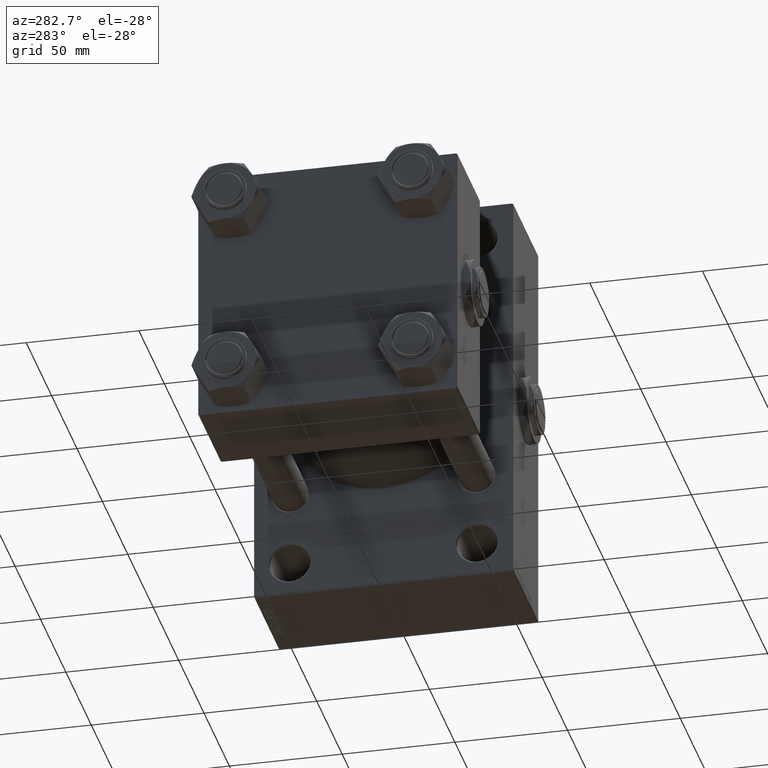
[diagram: clean part render]
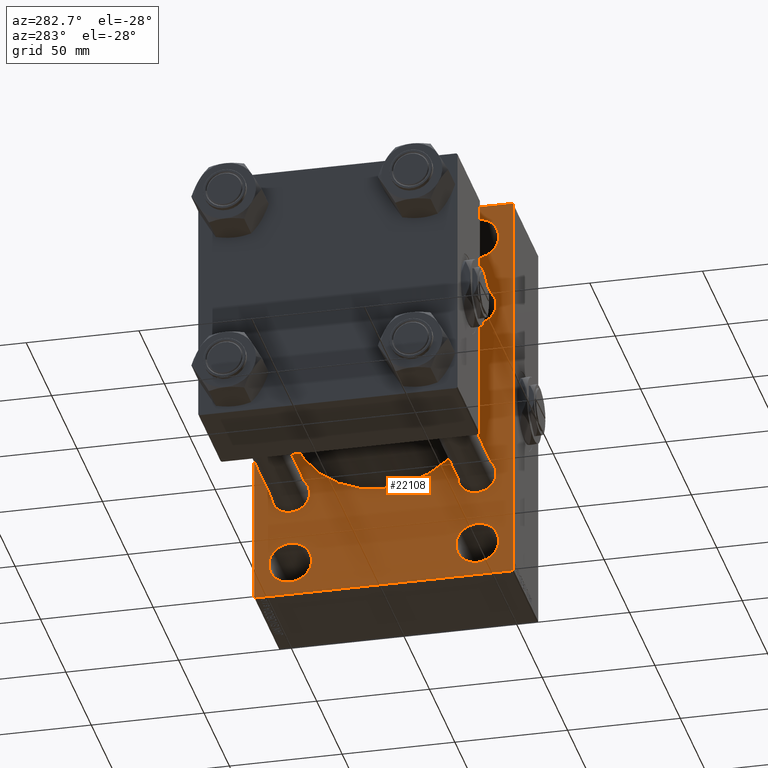
[diagram: same view with one face highlighted and labeled with its STEP entity id]
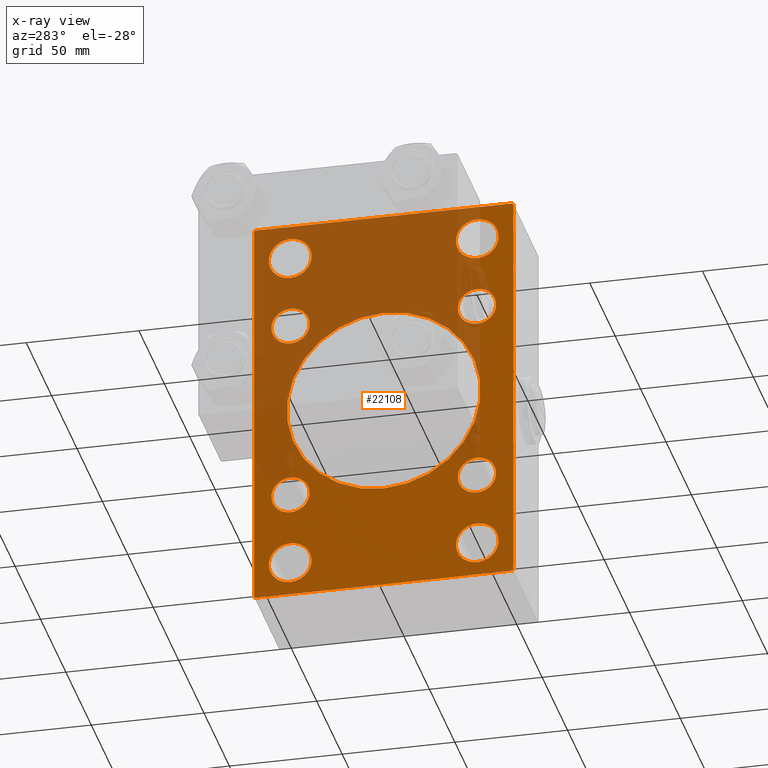
[diagram: x-ray of the same camera — body ghosted, the highlighted face saturated]
A machine part, auxiliary view. The second image highlights one B-rep face of the part: STEP entity #22108.
The next image is the same camera in x-ray: the body ghosted, the highlighted face saturated — about 47% of this face is hidden behind the body in this view.
In plain terms, the highlighted planar face has unit normal (-1, 0, 0).
Its self-contained STEP definition (entity closure, byte-faithful):
#246 = CARTESIAN_POINT ( 'NONE',  ( 110.0000000000000000, 73.49999999999916156, -73.50000000000122213 ) ) ;
#305 = CIRCLE ( 'NONE', #46122, 8.500000000000007105 ) ;
#605 = CIRCLE ( 'NONE', #28726, 43.00000000000000000 ) ;
#878 = CIRCLE ( 'NONE', #30614, 8.500000000000007105 ) ;
#1151 = CARTESIAN_POINT ( 'NONE',  ( 110.0000000000000000, -57.50000000000002132, 89.49999999999994316 ) ) ;
#1363 = DIRECTION ( 'NONE',  ( 0.000000000000000000, 0.000000000000000000, 1.000000000000000000 ) ) ;
#1447 = ORIENTED_EDGE ( 'NONE', *, *, #5412, .T. ) ;
#1449 = CARTESIAN_POINT ( 'NONE',  ( 110.0000000000000000, 41.34999999999999432, 41.35000000000000142 ) ) ;
#2037 = DIRECTION ( 'NONE',  ( 0.000000000000000000, -1.000000000000000000, -1.206764157201257291E-16 ) ) ;
#2074 = DIRECTION ( 'NONE',  ( 1.000000000000000000, -0.000000000000000000, 0.000000000000000000 ) ) ;
#2473 = AXIS2_PLACEMENT_3D ( 'NONE', #6873, #29532, #37078 ) ;
#2915 = ORIENTED_EDGE ( 'NONE', *, *, #7496, .T. ) ;
#3281 = CARTESIAN_POINT ( 'NONE',  ( 110.0000000000000000, -73.49999999999918998, -73.50000000000123634 ) ) ;
#3391 = EDGE_CURVE ( 'NONE', #38783, #4197, #41523, .T. ) ;
#4034 = LINE ( 'NONE', #3281, #37221 ) ;
#4197 = VERTEX_POINT ( 'NONE', #31053 ) ;
#4209 = EDGE_CURVE ( 'NONE', #30646, #10690, #39911, .T. ) ;
#4331 = FACE_BOUND ( 'NONE', #17637, .T. ) ;
#4976 = ORIENTED_EDGE ( 'NONE', *, *, #6711, .T. ) ;
#5055 = AXIS2_PLACEMENT_3D ( 'NONE', #30129, #49740, #22321 ) ;
#5187 = CARTESIAN_POINT ( 'NONE',  ( 110.0000000000000000, -41.49999999999999289, 74.50000000000001421 ) ) ;
#5412 = EDGE_CURVE ( 'NONE', #28501, #28387, #5430, .T. ) ;
#5430 = CIRCLE ( 'NONE', #37573, 9.500000000000035527 ) ;
#5635 = ORIENTED_EDGE ( 'NONE', *, *, #35352, .F. ) ;
#5888 = CARTESIAN_POINT ( 'NONE',  ( 110.0000000000000000, -41.34999999999998721, 49.85000000000002274 ) ) ;
#5890 = DIRECTION ( 'NONE',  ( 0.000000000000000000, 0.000000000000000000, 1.000000000000000000 ) ) ;
#5931 = AXIS2_PLACEMENT_3D ( 'NONE', #21607, #29668, #30163 ) ;
#6103 = AXIS2_PLACEMENT_3D ( 'NONE', #24038, #32095, #5890 ) ;
#6415 = DIRECTION ( 'NONE',  ( 0.000000000000000000, 3.854941057726238467E-17, -1.000000000000000000 ) ) ;
#6624 = VERTEX_POINT ( 'NONE', #33776 ) ;
#6711 = EDGE_CURVE ( 'NONE', #10690, #30646, #305, .T. ) ;
#6718 = CARTESIAN_POINT ( 'NONE',  ( 110.0000000000000000, 41.50000000000000711, -64.99999999999995737 ) ) ;
#6873 = CARTESIAN_POINT ( 'NONE',  ( 110.0000000000000000, 41.50000000000000711, -74.50000000000000000 ) ) ;
#6926 = CIRCLE ( 'NONE', #6103, 8.500000000000007105 ) ;
#7496 = EDGE_CURVE ( 'NONE', #28387, #28501, #34093, .T. ) ;
#7856 = FACE_BOUND ( 'NONE', #27913, .T. ) ;
#7920 = CARTESIAN_POINT ( 'NONE',  ( 110.0000000000000000, 41.34999999999999432, -32.84999999999999432 ) ) ;
#8038 = DIRECTION ( 'NONE',  ( 1.000000000000000000, 0.000000000000000000, 0.000000000000000000 ) ) ;
#8146 = DIRECTION ( 'NONE',  ( 0.000000000000000000, 0.000000000000000000, 1.000000000000000000 ) ) ;
#8202 = CARTESIAN_POINT ( 'NONE',  ( 110.0000000000000000, -2.602085213965210642E-15, 43.00000000000000000 ) ) ;
#8498 = CARTESIAN_POINT ( 'NONE',  ( 110.0000000000000000, 57.49999999999997868, -89.49999999999990052 ) ) ;
#8513 = EDGE_CURVE ( 'NONE', #6624, #28816, #45210, .T. ) ;
#8535 = DIRECTION ( 'NONE',  ( 0.000000000000000000, 0.000000000000000000, -1.000000000000000000 ) ) ;
#8654 = CIRCLE ( 'NONE', #21502, 8.500000000000007105 ) ;
#8839 = CIRCLE ( 'NONE', #21695, 43.00000000000000000 ) ;
#9211 = VECTOR ( 'NONE', #2037, 1000.000000000000000 ) ;
#9525 = VECTOR ( 'NONE', #36710, 1000.000000000000114 ) ;
#9962 = CARTESIAN_POINT ( 'NONE',  ( 110.0000000000000000, 57.49999999999997868, -90.00000000000000000 ) ) ;
#10220 = VERTEX_POINT ( 'NONE', #37184 ) ;
#10477 = CIRCLE ( 'NONE', #2473, 9.500000000000035527 ) ;
#10690 = VERTEX_POINT ( 'NONE', #18979 ) ;
#10875 = EDGE_CURVE ( 'NONE', #25989, #14028, #8654, .T. ) ;
#10942 = CARTESIAN_POINT ( 'NONE',  ( 110.0000000000000000, -56.99999999999996447, -90.00000000000001421 ) ) ;
#11517 = CARTESIAN_POINT ( 'NONE',  ( 110.0000000000000000, -41.34999999999998721, -49.85000000000002274 ) ) ;
#11896 = CARTESIAN_POINT ( 'NONE',  ( 110.0000000000000000, -41.34999999999998721, -41.35000000000000853 ) ) ;
#12230 = DIRECTION ( 'NONE',  ( 0.000000000000000000, 0.000000000000000000, 1.000000000000000000 ) ) ;
#12588 = CIRCLE ( 'NONE', #33514, 9.500000000000035527 ) ;
#13088 = EDGE_CURVE ( 'NONE', #42217, #31296, #46990, .T. ) ;
#13646 = DIRECTION ( 'NONE',  ( 1.000000000000000000, -0.000000000000000000, 0.000000000000000000 ) ) ;
#13731 = EDGE_LOOP ( 'NONE', ( #4976, #42952 ) ) ;
#13910 = DIRECTION ( 'NONE',  ( 0.000000000000000000, 0.000000000000000000, 1.000000000000000000 ) ) ;
#14028 = VERTEX_POINT ( 'NONE', #5888 ) ;
#14714 = DIRECTION ( 'NONE',  ( 1.000000000000000000, 0.000000000000000000, 0.000000000000000000 ) ) ;
#14873 = DIRECTION ( 'NONE',  ( 1.000000000000000000, -0.000000000000000000, 0.000000000000000000 ) ) ;
#15015 = AXIS2_PLACEMENT_3D ( 'NONE', #1449, #20825, #16791 ) ;
#15362 = CARTESIAN_POINT ( 'NONE',  ( 110.0000000000000000, -41.34999999999998721, -41.35000000000000853 ) ) ;
#15586 = DIRECTION ( 'NONE',  ( -0.000000000000000000, -0.7071067811865574537, -0.7071067811865376918 ) ) ;
#15635 = FACE_OUTER_BOUND ( 'NONE', #41082, .T. ) ;
#15638 = VECTOR ( 'NONE', #45461, 1000.000000000000000 ) ;
#15721 = ORIENTED_EDGE ( 'NONE', *, *, #32378, .T. ) ;
#15780 = AXIS2_PLACEMENT_3D ( 'NONE', #18210, #37594, #45143 ) ;
#16256 = VERTEX_POINT ( 'NONE', #26898 ) ;
#16463 = CARTESIAN_POINT ( 'NONE',  ( 110.0000000000000000, 41.50000000000000711, -84.00000000000002842 ) ) ;
#16564 = VERTEX_POINT ( 'NONE', #6718 ) ;
#16673 = DIRECTION ( 'NONE',  ( 1.000000000000000000, -0.000000000000000000, 0.000000000000000000 ) ) ;
#16713 = CARTESIAN_POINT ( 'NONE',  ( 110.0000000000000000, 41.34999999999999432, 32.84999999999999432 ) ) ;
#16791 = DIRECTION ( 'NONE',  ( 0.000000000000000000, 0.000000000000000000, 1.000000000000000000 ) ) ;
#17126 = CARTESIAN_POINT ( 'NONE',  ( 110.0000000000000000, -41.49999999999999289, 64.99999999999997158 ) ) ;
#17158 = DIRECTION ( 'NONE',  ( 1.000000000000000000, -0.000000000000000000, 0.000000000000000000 ) ) ;
#17637 = EDGE_LOOP ( 'NONE', ( #34516, #27045 ) ) ;
#17668 = CARTESIAN_POINT ( 'NONE',  ( 110.0000000000000000, 41.50000000000000711, -74.50000000000000000 ) ) ;
#17959 = VERTEX_POINT ( 'NONE', #44938 ) ;
#17969 = LINE ( 'NONE', #33590, #28137 ) ;
#18006 = DIRECTION ( 'NONE',  ( 1.000000000000000000, -0.000000000000000000, 0.000000000000000000 ) ) ;
#18210 = CARTESIAN_POINT ( 'NONE',  ( 110.0000000000000000, 41.50000000000000711, 74.50000000000001421 ) ) ;
#18262 = DIRECTION ( 'NONE',  ( 0.000000000000000000, 0.000000000000000000, 1.000000000000000000 ) ) ;
#18271 = EDGE_CURVE ( 'NONE', #28816, #17959, #4034, .T. ) ;
#18979 = CARTESIAN_POINT ( 'NONE',  ( 110.0000000000000000, -41.34999999999998721, -32.85000000000000142 ) ) ;
#19084 = LINE ( 'NONE', #37729, #32060 ) ;
#19283 = EDGE_LOOP ( 'NONE', ( #36234, #23405 ) ) ;
#19491 = VERTEX_POINT ( 'NONE', #39734 ) ;
#19681 = DIRECTION ( 'NONE',  ( -1.000000000000000000, 0.000000000000000000, -0.000000000000000000 ) ) ;
#19776 = ORIENTED_EDGE ( 'NONE', *, *, #8513, .T. ) ;
#19824 = AXIS2_PLACEMENT_3D ( 'NONE', #11896, #16673, #8146 ) ;
#20087 = ORIENTED_EDGE ( 'NONE', *, *, #44901, .T. ) ;
#20181 = VERTEX_POINT ( 'NONE', #7920 ) ;
#20438 = AXIS2_PLACEMENT_3D ( 'NONE', #5187, #23556, #31619 ) ;
#20672 = EDGE_CURVE ( 'NONE', #14028, #25989, #47732, .T. ) ;
#20825 = DIRECTION ( 'NONE',  ( 1.000000000000000000, -0.000000000000000000, 0.000000000000000000 ) ) ;
#20975 = EDGE_CURVE ( 'NONE', #27553, #31520, #8839, .T. ) ;
#21060 = VERTEX_POINT ( 'NONE', #26810 ) ;
#21502 = AXIS2_PLACEMENT_3D ( 'NONE', #44117, #2074, #32796 ) ;
#21607 = CARTESIAN_POINT ( 'NONE',  ( 110.0000000000000000, -41.34999999999998721, 41.35000000000000853 ) ) ;
#21695 = AXIS2_PLACEMENT_3D ( 'NONE', #30835, #14714, #46441 ) ;
#22108 = ADVANCED_FACE ( 'NONE', ( #34791, #46861, #7856, #46618, #35043, #4331, #27743, #23216, #38570, #15635 ), #31014, .T. ) ;
#22321 = DIRECTION ( 'NONE',  ( 0.000000000000000000, 0.000000000000000000, 1.000000000000000000 ) ) ;
#22444 = DIRECTION ( 'NONE',  ( 0.000000000000000000, 0.000000000000000000, 1.000000000000000000 ) ) ;
#22460 = CARTESIAN_POINT ( 'NONE',  ( 110.0000000000000000, 41.34999999999999432, -41.35000000000000142 ) ) ;
#23081 = CARTESIAN_POINT ( 'NONE',  ( 110.0000000000000000, 41.50000000000000711, 74.50000000000001421 ) ) ;
#23162 = AXIS2_PLACEMENT_3D ( 'NONE', #30776, #18006, #18262 ) ;
#23216 = FACE_BOUND ( 'NONE', #13731, .T. ) ;
#23405 = ORIENTED_EDGE ( 'NONE', *, *, #13088, .T. ) ;
#23556 = DIRECTION ( 'NONE',  ( 1.000000000000000000, -0.000000000000000000, 0.000000000000000000 ) ) ;
#24038 = CARTESIAN_POINT ( 'NONE',  ( 110.0000000000000000, 41.34999999999999432, -41.35000000000000142 ) ) ;
#24652 = CARTESIAN_POINT ( 'NONE',  ( 110.0000000000000000, 73.49999999999995737, 73.49999999999995737 ) ) ;
#25248 = CARTESIAN_POINT ( 'NONE',  ( 110.0000000000000000, -41.49999999999999289, 84.00000000000004263 ) ) ;
#25748 = EDGE_CURVE ( 'NONE', #19491, #16256, #36775, .T. ) ;
#25989 = VERTEX_POINT ( 'NONE', #28438 ) ;
#26601 = VERTEX_POINT ( 'NONE', #46895 ) ;
#26651 = DIRECTION ( 'NONE',  ( 0.000000000000000000, 0.000000000000000000, -1.000000000000000000 ) ) ;
#26810 = CARTESIAN_POINT ( 'NONE',  ( 110.0000000000000000, 41.34999999999999432, -49.85000000000001563 ) ) ;
#26832 = CARTESIAN_POINT ( 'NONE',  ( 110.0000000000000000, -41.49999999999999289, -84.00000000000001421 ) ) ;
#26898 = CARTESIAN_POINT ( 'NONE',  ( 110.0000000000000000, -56.99999999999998579, 89.99999999999997158 ) ) ;
#27045 = ORIENTED_EDGE ( 'NONE', *, *, #39827, .T. ) ;
#27553 = VERTEX_POINT ( 'NONE', #8202 ) ;
#27743 = FACE_BOUND ( 'NONE', #32105, .T. ) ;
#27913 = EDGE_LOOP ( 'NONE', ( #45019, #45979 ) ) ;
#27995 = EDGE_LOOP ( 'NONE', ( #41808, #20087 ) ) ;
#28137 = VECTOR ( 'NONE', #6415, 1000.000000000000000 ) ;
#28387 = VERTEX_POINT ( 'NONE', #25248 ) ;
#28438 = CARTESIAN_POINT ( 'NONE',  ( 110.0000000000000000, -41.34999999999998721, 32.85000000000000142 ) ) ;
#28501 = VERTEX_POINT ( 'NONE', #17126 ) ;
#28726 = AXIS2_PLACEMENT_3D ( 'NONE', #43009, #8038, #8535 ) ;
#28816 = VERTEX_POINT ( 'NONE', #10942 ) ;
#28877 = EDGE_CURVE ( 'NONE', #20181, #21060, #6926, .T. ) ;
#28998 = VERTEX_POINT ( 'NONE', #16463 ) ;
#29164 = DIRECTION ( 'NONE',  ( -0.000000000000000000, 0.7071067811865524577, 0.7071067811865426878 ) ) ;
#29424 = EDGE_CURVE ( 'NONE', #29891, #6624, #46066, .T. ) ;
#29532 = DIRECTION ( 'NONE',  ( 1.000000000000000000, -0.000000000000000000, 0.000000000000000000 ) ) ;
#29668 = DIRECTION ( 'NONE',  ( 1.000000000000000000, -0.000000000000000000, 0.000000000000000000 ) ) ;
#29807 = DIRECTION ( 'NONE',  ( 1.000000000000000000, -0.000000000000000000, 0.000000000000000000 ) ) ;
#29891 = VERTEX_POINT ( 'NONE', #8498 ) ;
#30049 = CARTESIAN_POINT ( 'NONE',  ( 110.0000000000000000, -41.49999999999999289, 74.50000000000001421 ) ) ;
#30129 = CARTESIAN_POINT ( 'NONE',  ( 110.0000000000000000, -41.49999999999999289, -74.49999999999998579 ) ) ;
#30163 = DIRECTION ( 'NONE',  ( 0.000000000000000000, 0.000000000000000000, 1.000000000000000000 ) ) ;
#30220 = DIRECTION ( 'NONE',  ( 0.000000000000000000, -0.7071067811865574537, 0.7071067811865376918 ) ) ;
#30262 = DIRECTION ( 'NONE',  ( 0.000000000000000000, 0.000000000000000000, 1.000000000000000000 ) ) ;
#30614 = AXIS2_PLACEMENT_3D ( 'NONE', #48146, #13646, #1363 ) ;
#30646 = VERTEX_POINT ( 'NONE', #11517 ) ;
#30776 = CARTESIAN_POINT ( 'NONE',  ( 110.0000000000000000, -41.49999999999999289, -74.49999999999998579 ) ) ;
#30799 = EDGE_CURVE ( 'NONE', #10220, #46219, #34303, .T. ) ;
#30835 = CARTESIAN_POINT ( 'NONE',  ( 110.0000000000000000, -2.602085213965210642E-15, 0.000000000000000000 ) ) ;
#30850 = EDGE_CURVE ( 'NONE', #16564, #28998, #12588, .T. ) ;
#31014 = PLANE ( 'NONE',  #48564 ) ;
#31053 = CARTESIAN_POINT ( 'NONE',  ( 110.0000000000000000, 41.50000000000000711, 64.99999999999997158 ) ) ;
#31269 = DIRECTION ( 'NONE',  ( -0.000000000000000000, 0.000000000000000000, 1.000000000000000000 ) ) ;
#31296 = VERTEX_POINT ( 'NONE', #47809 ) ;
#31439 = CARTESIAN_POINT ( 'NONE',  ( 110.0000000000000000, 2.663896022368408223E-15, -43.00000000000000000 ) ) ;
#31509 = ORIENTED_EDGE ( 'NONE', *, *, #34500, .T. ) ;
#31520 = VERTEX_POINT ( 'NONE', #31439 ) ;
#31619 = DIRECTION ( 'NONE',  ( 0.000000000000000000, 0.000000000000000000, 1.000000000000000000 ) ) ;
#31876 = VECTOR ( 'NONE', #15586, 999.9999999999998863 ) ;
#32060 = VECTOR ( 'NONE', #26651, 1000.000000000000000 ) ;
#32095 = DIRECTION ( 'NONE',  ( 1.000000000000000000, -0.000000000000000000, 0.000000000000000000 ) ) ;
#32105 = EDGE_LOOP ( 'NONE', ( #46258, #35804 ) ) ;
#32378 = EDGE_CURVE ( 'NONE', #31520, #27553, #605, .T. ) ;
#32782 = DIRECTION ( 'NONE',  ( 0.000000000000000000, 0.000000000000000000, 1.000000000000000000 ) ) ;
#32796 = DIRECTION ( 'NONE',  ( 0.000000000000000000, 0.000000000000000000, 1.000000000000000000 ) ) ;
#32974 = CIRCLE ( 'NONE', #39412, 8.500000000000007105 ) ;
#33279 = ORIENTED_EDGE ( 'NONE', *, *, #18271, .T. ) ;
#33513 = EDGE_LOOP ( 'NONE', ( #43672, #15721 ) ) ;
#33514 = AXIS2_PLACEMENT_3D ( 'NONE', #17668, #17158, #32782 ) ;
#33590 = CARTESIAN_POINT ( 'NONE',  ( 110.0000000000000000, 57.49999999999997158, 89.99999999999998579 ) ) ;
#33653 = ORIENTED_EDGE ( 'NONE', *, *, #10875, .T. ) ;
#33776 = CARTESIAN_POINT ( 'NONE',  ( 110.0000000000000000, 56.99999999999992895, -90.00000000000000000 ) ) ;
#34043 = EDGE_CURVE ( 'NONE', #31296, #42217, #47283, .T. ) ;
#34087 = ORIENTED_EDGE ( 'NONE', *, *, #29424, .T. ) ;
#34093 = CIRCLE ( 'NONE', #20438, 9.500000000000035527 ) ;
#34303 = CIRCLE ( 'NONE', #15015, 8.500000000000007105 ) ;
#34497 = EDGE_CURVE ( 'NONE', #19491, #26601, #35990, .T. ) ;
#34500 = EDGE_CURVE ( 'NONE', #42368, #16256, #40004, .T. ) ;
#34516 = ORIENTED_EDGE ( 'NONE', *, *, #30799, .T. ) ;
#34791 = FACE_BOUND ( 'NONE', #41256, .T. ) ;
#35043 = FACE_BOUND ( 'NONE', #35521, .T. ) ;
#35352 = EDGE_CURVE ( 'NONE', #42368, #17959, #19084, .T. ) ;
#35521 = EDGE_LOOP ( 'NONE', ( #48238, #33653 ) ) ;
#35804 = ORIENTED_EDGE ( 'NONE', *, *, #38425, .T. ) ;
#35990 = LINE ( 'NONE', #24652, #9525 ) ;
#36234 = ORIENTED_EDGE ( 'NONE', *, *, #34043, .T. ) ;
#36524 = CARTESIAN_POINT ( 'NONE',  ( 110.0000000000000000, 57.49999999999997158, 89.99999999999998579 ) ) ;
#36710 = DIRECTION ( 'NONE',  ( 0.000000000000000000, 0.7071067811865474617, -0.7071067811865474617 ) ) ;
#36775 = LINE ( 'NONE', #36524, #9211 ) ;
#37078 = DIRECTION ( 'NONE',  ( 0.000000000000000000, 0.000000000000000000, 1.000000000000000000 ) ) ;
#37184 = CARTESIAN_POINT ( 'NONE',  ( 110.0000000000000000, 41.34999999999999432, 49.85000000000001563 ) ) ;
#37221 = VECTOR ( 'NONE', #30220, 999.9999999999998863 ) ;
#37273 = EDGE_CURVE ( 'NONE', #26601, #29891, #17969, .T. ) ;
#37573 = AXIS2_PLACEMENT_3D ( 'NONE', #30049, #29807, #13910 ) ;
#37594 = DIRECTION ( 'NONE',  ( 1.000000000000000000, -0.000000000000000000, 0.000000000000000000 ) ) ;
#37693 = AXIS2_PLACEMENT_3D ( 'NONE', #23081, #46486, #12230 ) ;
#37729 = CARTESIAN_POINT ( 'NONE',  ( 110.0000000000000000, -57.50000000000002132, 89.99999999999997158 ) ) ;
#38425 = EDGE_CURVE ( 'NONE', #21060, #20181, #32974, .T. ) ;
#38570 = FACE_BOUND ( 'NONE', #33513, .T. ) ;
#38783 = VERTEX_POINT ( 'NONE', #39978 ) ;
#39052 = ORIENTED_EDGE ( 'NONE', *, *, #25748, .F. ) ;
#39412 = AXIS2_PLACEMENT_3D ( 'NONE', #22460, #14873, #30262 ) ;
#39734 = CARTESIAN_POINT ( 'NONE',  ( 110.0000000000000000, 56.99999999999994316, 89.99999999999998579 ) ) ;
#39827 = EDGE_CURVE ( 'NONE', #46219, #10220, #878, .T. ) ;
#39911 = CIRCLE ( 'NONE', #19824, 8.500000000000007105 ) ;
#39936 = EDGE_CURVE ( 'NONE', #28998, #16564, #10477, .T. ) ;
#39978 = CARTESIAN_POINT ( 'NONE',  ( 110.0000000000000000, 41.50000000000000711, 84.00000000000004263 ) ) ;
#40004 = LINE ( 'NONE', #44505, #46518 ) ;
#41082 = EDGE_LOOP ( 'NONE', ( #19776, #33279, #5635, #31509, #39052, #47728, #45084, #34087 ) ) ;
#41256 = EDGE_LOOP ( 'NONE', ( #2915, #1447 ) ) ;
#41523 = CIRCLE ( 'NONE', #15780, 9.500000000000035527 ) ;
#41808 = ORIENTED_EDGE ( 'NONE', *, *, #3391, .T. ) ;
#42217 = VERTEX_POINT ( 'NONE', #26832 ) ;
#42368 = VERTEX_POINT ( 'NONE', #1151 ) ;
#42952 = ORIENTED_EDGE ( 'NONE', *, *, #4209, .T. ) ;
#43009 = CARTESIAN_POINT ( 'NONE',  ( 110.0000000000000000, -2.602085213965210642E-15, 0.000000000000000000 ) ) ;
#43672 = ORIENTED_EDGE ( 'NONE', *, *, #20975, .T. ) ;
#44117 = CARTESIAN_POINT ( 'NONE',  ( 110.0000000000000000, -41.34999999999998721, 41.35000000000000853 ) ) ;
#44505 = CARTESIAN_POINT ( 'NONE',  ( 110.0000000000000000, -73.49999999999957367, 73.50000000000059686 ) ) ;
#44901 = EDGE_CURVE ( 'NONE', #4197, #38783, #49756, .T. ) ;
#44938 = CARTESIAN_POINT ( 'NONE',  ( 110.0000000000000000, -57.50000000000002132, -89.49999999999991473 ) ) ;
#45019 = ORIENTED_EDGE ( 'NONE', *, *, #30850, .T. ) ;
#45084 = ORIENTED_EDGE ( 'NONE', *, *, #37273, .T. ) ;
#45143 = DIRECTION ( 'NONE',  ( 0.000000000000000000, 0.000000000000000000, 1.000000000000000000 ) ) ;
#45210 = LINE ( 'NONE', #9962, #15638 ) ;
#45461 = DIRECTION ( 'NONE',  ( 0.000000000000000000, -1.000000000000000000, -1.206764157201257045E-16 ) ) ;
#45979 = ORIENTED_EDGE ( 'NONE', *, *, #39936, .T. ) ;
#46066 = LINE ( 'NONE', #246, #31876 ) ;
#46086 = DIRECTION ( 'NONE',  ( 1.000000000000000000, -0.000000000000000000, 0.000000000000000000 ) ) ;
#46122 = AXIS2_PLACEMENT_3D ( 'NONE', #15362, #46086, #22444 ) ;
#46219 = VERTEX_POINT ( 'NONE', #16713 ) ;
#46258 = ORIENTED_EDGE ( 'NONE', *, *, #28877, .T. ) ;
#46359 = CARTESIAN_POINT ( 'NONE',  ( 110.0000000000000000, 0.000000000000000000, 0.000000000000000000 ) ) ;
#46441 = DIRECTION ( 'NONE',  ( 0.000000000000000000, 0.000000000000000000, -1.000000000000000000 ) ) ;
#46486 = DIRECTION ( 'NONE',  ( 1.000000000000000000, -0.000000000000000000, 0.000000000000000000 ) ) ;
#46518 = VECTOR ( 'NONE', #29164, 1000.000000000000000 ) ;
#46618 = FACE_BOUND ( 'NONE', #27995, .T. ) ;
#46861 = FACE_BOUND ( 'NONE', #19283, .T. ) ;
#46895 = CARTESIAN_POINT ( 'NONE',  ( 110.0000000000000000, 57.49999999999997158, 89.49999999999995737 ) ) ;
#46990 = CIRCLE ( 'NONE', #5055, 9.500000000000035527 ) ;
#47283 = CIRCLE ( 'NONE', #23162, 9.500000000000035527 ) ;
#47728 = ORIENTED_EDGE ( 'NONE', *, *, #34497, .T. ) ;
#47732 = CIRCLE ( 'NONE', #5931, 8.500000000000007105 ) ;
#47809 = CARTESIAN_POINT ( 'NONE',  ( 110.0000000000000000, -41.49999999999999289, -64.99999999999994316 ) ) ;
#48146 = CARTESIAN_POINT ( 'NONE',  ( 110.0000000000000000, 41.34999999999999432, 41.35000000000000142 ) ) ;
#48238 = ORIENTED_EDGE ( 'NONE', *, *, #20672, .T. ) ;
#48564 = AXIS2_PLACEMENT_3D ( 'NONE', #46359, #19681, #31269 ) ;
#49740 = DIRECTION ( 'NONE',  ( 1.000000000000000000, -0.000000000000000000, 0.000000000000000000 ) ) ;
#49756 = CIRCLE ( 'NONE', #37693, 9.500000000000035527 ) ;